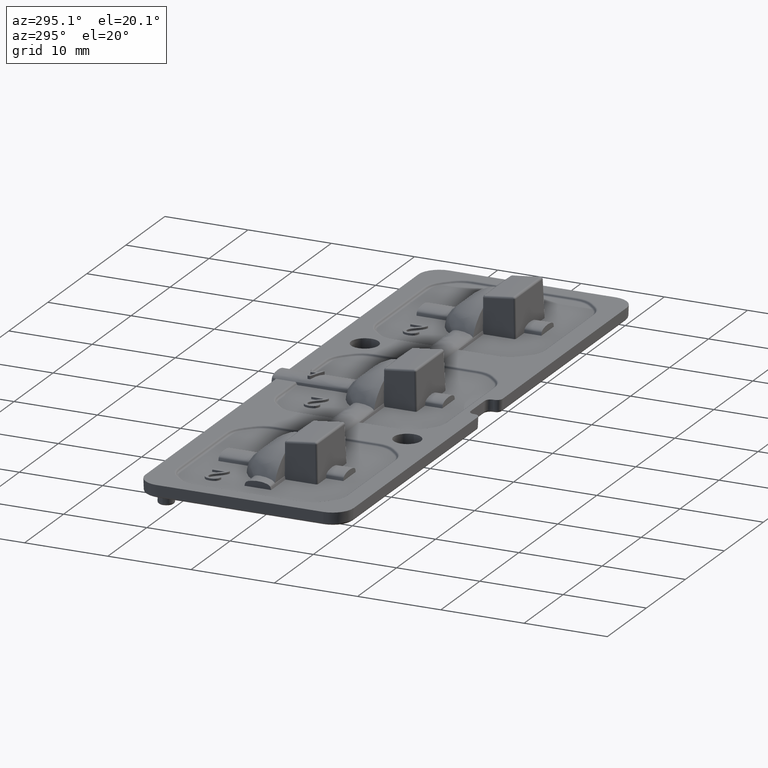
[diagram: clean part render]
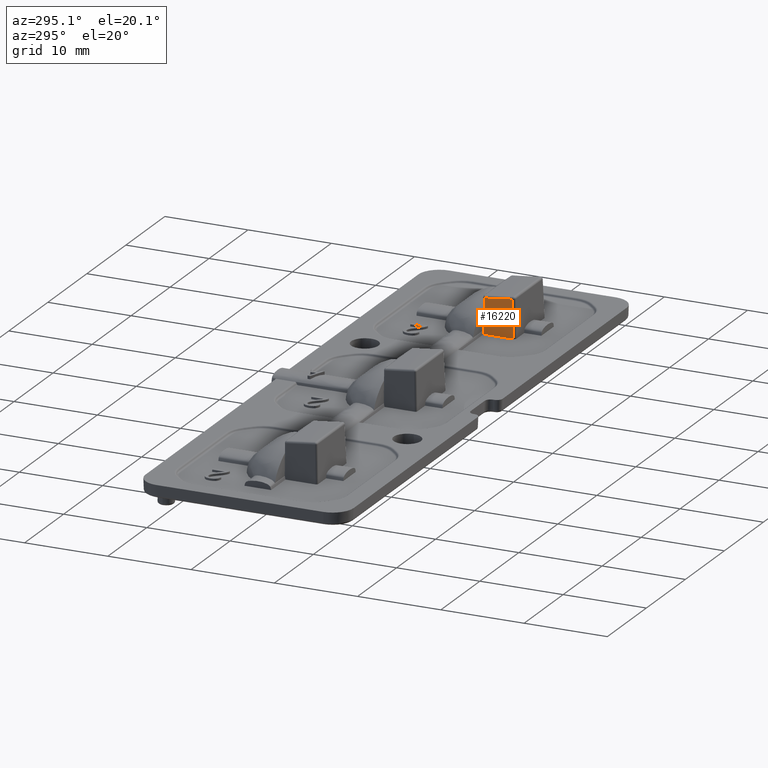
[diagram: same view with one face highlighted and labeled with its STEP entity id]
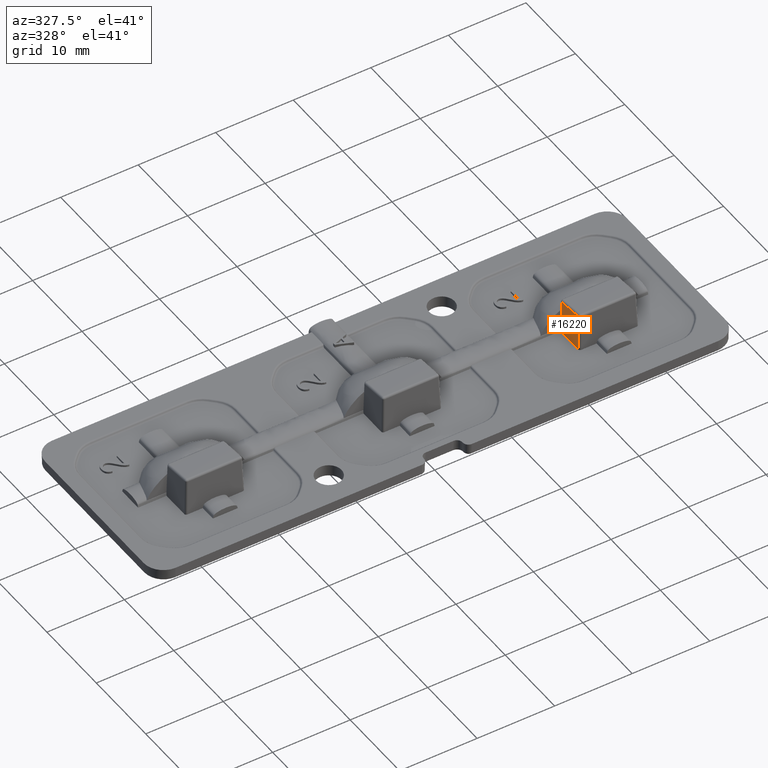
[diagram: same view with one face highlighted and labeled with its STEP entity id]
A machine part, auxiliary view. The second image highlights one B-rep face of the part: STEP entity #16220.
A second angle (auxiliary view) of the same face is appended — the face is thin or edge-on in the first view.
In plain terms, the highlighted planar face has unit normal (-0.9994, 0, 0.0349).
Its self-contained STEP definition (entity closure, byte-faithful):
#5 = CARTESIAN_POINT ( 'NONE',  ( 21.56864900164287500, 1.108477390938639300E-014, 1.199999999999999700 ) ) ;
#105 = EDGE_LOOP ( 'NONE', ( #15255, #625, #16848, #5136 ) ) ;
#625 = ORIENTED_EDGE ( 'NONE', *, *, #13818, .T. ) ;
#1311 = DIRECTION ( 'NONE',  ( -0.03489949670250104600, -0.0000000000000000000, -0.9993908270190956500 ) ) ;
#1607 = EDGE_CURVE ( 'NONE', #9624, #14002, #12211, .T. ) ;
#1729 = EDGE_CURVE ( 'NONE', #14002, #2704, #5739, .T. ) ;
#2704 = VERTEX_POINT ( 'NONE', #19248 ) ;
#2814 = CARTESIAN_POINT ( 'NONE',  ( 21.71380695591649300, -1.649999999999987700, 5.356779944609258800 ) ) ;
#2954 = VERTEX_POINT ( 'NONE', #5007 ) ;
#3740 = CARTESIAN_POINT ( 'NONE',  ( 21.72439912409666000, -3.900029990059052900, 5.660099955431663300 ) ) ;
#3770 = FACE_OUTER_BOUND ( 'NONE', #105, .T. ) ;
#3823 = DIRECTION ( 'NONE',  ( 0.03487826274237470400, 0.03487826274237059600, 0.9987827659587184000 ) ) ;
#4275 = CARTESIAN_POINT ( 'NONE',  ( 21.56864900164287500, 1.108477390938639300E-014, 1.199999999999999700 ) ) ;
#5007 = CARTESIAN_POINT ( 'NONE',  ( 21.56864900164287500, -5.190835783116287200, 1.199999999999999700 ) ) ;
#5072 = LINE ( 'NONE', #5, #8622 ) ;
#5136 = ORIENTED_EDGE ( 'NONE', *, *, #1729, .T. ) ;
#5739 = LINE ( 'NONE', #19467, #18694 ) ;
#8569 = VECTOR ( 'NONE', #3823, 1000.000000000000000 ) ;
#8622 = VECTOR ( 'NONE', #10517, 1000.000000000000000 ) ;
#9624 = VERTEX_POINT ( 'NONE', #10804 ) ;
#9795 = CARTESIAN_POINT ( 'NONE',  ( 21.71778089712023500, -2.778988618075367800, 5.470578731450977700 ) ) ;
#9809 = CARTESIAN_POINT ( 'NONE',  ( 21.73524200994582500, -5.024242774813360200, 5.970599580926151600 ) ) ;
#10022 = EDGE_CURVE ( 'NONE', #2704, #2954, #5072, .T. ) ;
#10318 = DIRECTION ( 'NONE',  ( -0.9993908270190957600, 0.0000000000000000000, 0.03489949670250105200 ) ) ;
#10435 = DIRECTION ( 'NONE',  ( -0.03489949670250104600, -0.0000000000000000000, -0.9993908270190956500 ) ) ;
#10517 = DIRECTION ( 'NONE',  ( -0.0000000000000000000, -1.000000000000000000, -0.0000000000000000000 ) ) ;
#10804 = CARTESIAN_POINT ( 'NONE',  ( 21.72692888151292900, -5.032555903246252300, 5.732542729548298700 ) ) ;
#11126 = AXIS2_PLACEMENT_3D ( 'NONE', #4275, #10318, #1311 ) ;
#11318 = CARTESIAN_POINT ( 'NONE',  ( 21.71380695591649300, -1.649999999999987700, 5.356779944609258800 ) ) ;
#12211 = B_SPLINE_CURVE_WITH_KNOTS ( 'NONE', 3,
 ( #17254, #3740, #9795, #11318 ),
 .UNSPECIFIED., .F., .F.,
 ( 4, 4 ),
 ( 0.0000000000000000000, 0.003404082754937605600 ),
 .UNSPECIFIED. ) ;
#13818 = EDGE_CURVE ( 'NONE', #2954, #9624, #16583, .T. ) ;
#14002 = VERTEX_POINT ( 'NONE', #2814 ) ;
#14814 = PLANE ( 'NONE',  #11126 ) ;
#15255 = ORIENTED_EDGE ( 'NONE', *, *, #10022, .T. ) ;
#16220 = ADVANCED_FACE ( 'NONE', ( #3770 ), #14814, .T. ) ;
#16583 = LINE ( 'NONE', #9809, #8569 ) ;
#16848 = ORIENTED_EDGE ( 'NONE', *, *, #1607, .T. ) ;
#17254 = CARTESIAN_POINT ( 'NONE',  ( 21.72692888151292900, -5.032555903246252300, 5.732542729548298700 ) ) ;
#18694 = VECTOR ( 'NONE', #10435, 1000.000000000000200 ) ;
#19248 = CARTESIAN_POINT ( 'NONE',  ( 21.56864900164287500, -1.649999999999987700, 1.199999999999999700 ) ) ;
#19467 = CARTESIAN_POINT ( 'NONE',  ( 21.56864900164287500, -1.649999999999987700, 1.199999999999999700 ) ) ;